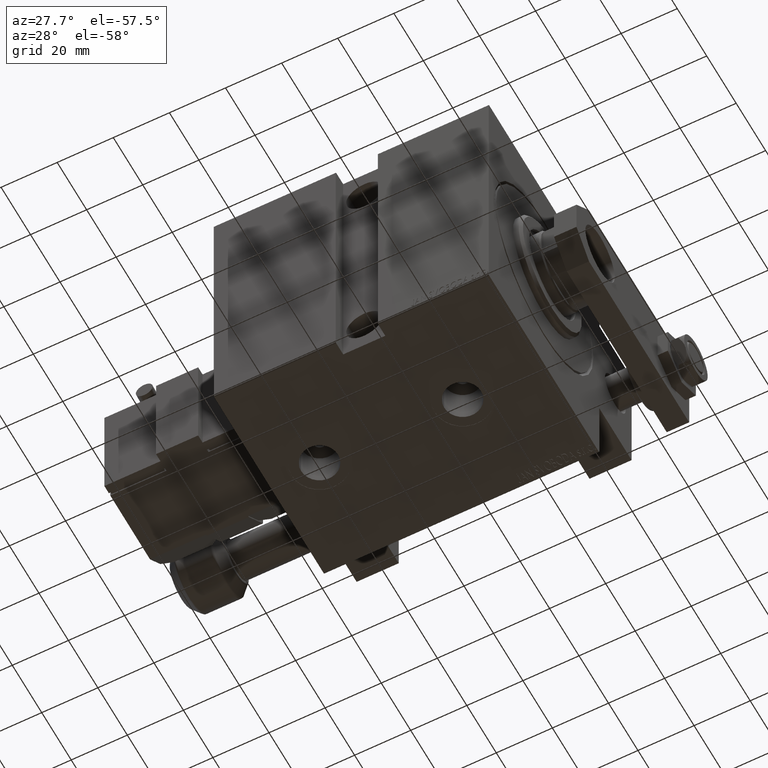
[diagram: clean part render]
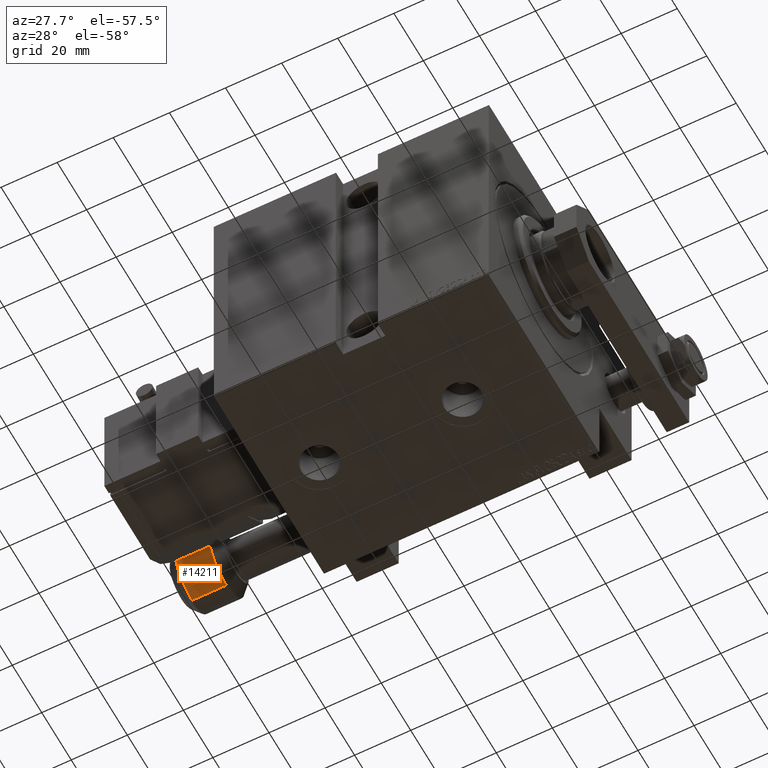
[diagram: same view with one face highlighted and labeled with its STEP entity id]
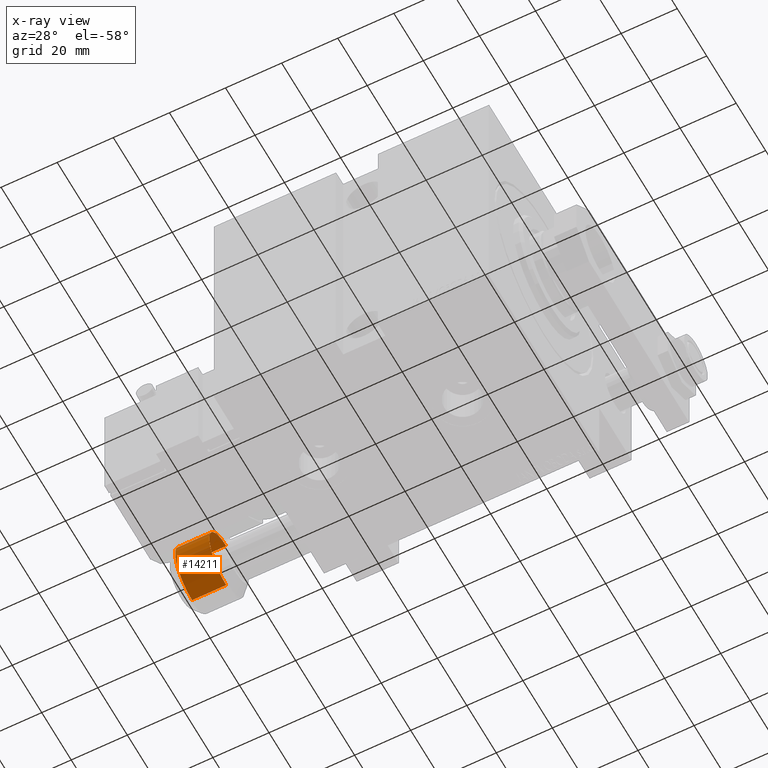
[diagram: x-ray of the same camera — body ghosted, the highlighted face saturated]
A machine part, auxiliary view. The second image highlights one B-rep face of the part: STEP entity #14211.
The next image is the same camera in x-ray: the body ghosted, the highlighted face saturated — about 8% of this face is hidden behind the body in this view.
In plain terms, the highlighted cylindrical surface (edge-blend (fillet) strip) has radius 11.5 mm, axis along (-1, 0, -0).
Its self-contained STEP definition (entity closure, byte-faithful):
#1614 = EDGE_LOOP ( 'NONE', ( #46739, #2033, #7173, #18216 ) ) ;
#2033 = ORIENTED_EDGE ( 'NONE', *, *, #14534, .T. ) ;
#3036 = CARTESIAN_POINT ( 'NONE',  ( 0.000000000000000000, 0.000000000000000000, 16.08578643762689708 ) ) ;
#3419 = VERTEX_POINT ( 'NONE', #8729 ) ;
#4382 = LINE ( 'NONE', #16412, #41395 ) ;
#7173 = ORIENTED_EDGE ( 'NONE', *, *, #19318, .T. ) ;
#7536 = CARTESIAN_POINT ( 'NONE',  ( 11.49999999999999822, 1.408343819019455979E-15, 16.08578643762689708 ) ) ;
#8729 = CARTESIAN_POINT ( 'NONE',  ( -11.49999999999999822, 0.000000000000000000, 3.914213562373095812 ) ) ;
#9330 = AXIS2_PLACEMENT_3D ( 'NONE', #15001, #34619, #18929 ) ;
#10834 = AXIS2_PLACEMENT_3D ( 'NONE', #20775, #27415, #31086 ) ;
#11278 = CIRCLE ( 'NONE', #27767, 11.49999999999999822 ) ;
#11667 = CIRCLE ( 'NONE', #9330, 11.49999999999999822 ) ;
#13027 = VERTEX_POINT ( 'NONE', #7536 ) ;
#14211 = ADVANCED_FACE ( 'NONE', ( #24464 ), #31335, .T. ) ;
#14534 = EDGE_CURVE ( 'NONE', #13027, #43850, #4382, .T. ) ;
#15001 = CARTESIAN_POINT ( 'NONE',  ( 0.000000000000000000, 0.000000000000000000, 3.914213562373095812 ) ) ;
#16246 = DIRECTION ( 'NONE',  ( -0.000000000000000000, -0.000000000000000000, -1.000000000000000000 ) ) ;
#16412 = CARTESIAN_POINT ( 'NONE',  ( 11.49999999999999822, 1.408343819019455979E-15, 20.00000000000000000 ) ) ;
#16733 = LINE ( 'NONE', #42720, #21499 ) ;
#17671 = CARTESIAN_POINT ( 'NONE',  ( -11.49999999999999822, 0.000000000000000000, 16.08578643762689708 ) ) ;
#18216 = ORIENTED_EDGE ( 'NONE', *, *, #47956, .F. ) ;
#18929 = DIRECTION ( 'NONE',  ( -1.000000000000000000, 0.000000000000000000, 0.000000000000000000 ) ) ;
#19318 = EDGE_CURVE ( 'NONE', #43850, #3419, #11667, .T. ) ;
#19833 = DIRECTION ( 'NONE',  ( -0.000000000000000000, -0.000000000000000000, -1.000000000000000000 ) ) ;
#20775 = CARTESIAN_POINT ( 'NONE',  ( 0.000000000000000000, 0.000000000000000000, 20.00000000000000000 ) ) ;
#21499 = VECTOR ( 'NONE', #16246, 1000.000000000000000 ) ;
#22853 = CARTESIAN_POINT ( 'NONE',  ( 11.49999999999999822, 1.408343819019455979E-15, 3.914213562373095812 ) ) ;
#24464 = FACE_OUTER_BOUND ( 'NONE', #1614, .T. ) ;
#24654 = DIRECTION ( 'NONE',  ( 1.000000000000000000, 0.000000000000000000, 0.000000000000000000 ) ) ;
#27415 = DIRECTION ( 'NONE',  ( -0.000000000000000000, -0.000000000000000000, -1.000000000000000000 ) ) ;
#27488 = VERTEX_POINT ( 'NONE', #17671 ) ;
#27767 = AXIS2_PLACEMENT_3D ( 'NONE', #3036, #39846, #24654 ) ;
#30884 = EDGE_CURVE ( 'NONE', #27488, #13027, #11278, .T. ) ;
#31086 = DIRECTION ( 'NONE',  ( -1.000000000000000000, 0.000000000000000000, 0.000000000000000000 ) ) ;
#31335 = CYLINDRICAL_SURFACE ( 'NONE', #10834, 11.49999999999999822 ) ;
#34619 = DIRECTION ( 'NONE',  ( -0.000000000000000000, -0.000000000000000000, 1.000000000000000000 ) ) ;
#39846 = DIRECTION ( 'NONE',  ( 0.000000000000000000, 0.000000000000000000, -1.000000000000000000 ) ) ;
#41395 = VECTOR ( 'NONE', #19833, 1000.000000000000000 ) ;
#42720 = CARTESIAN_POINT ( 'NONE',  ( -11.49999999999999822, 0.000000000000000000, 20.00000000000000000 ) ) ;
#43850 = VERTEX_POINT ( 'NONE', #22853 ) ;
#46739 = ORIENTED_EDGE ( 'NONE', *, *, #30884, .T. ) ;
#47956 = EDGE_CURVE ( 'NONE', #27488, #3419, #16733, .T. ) ;